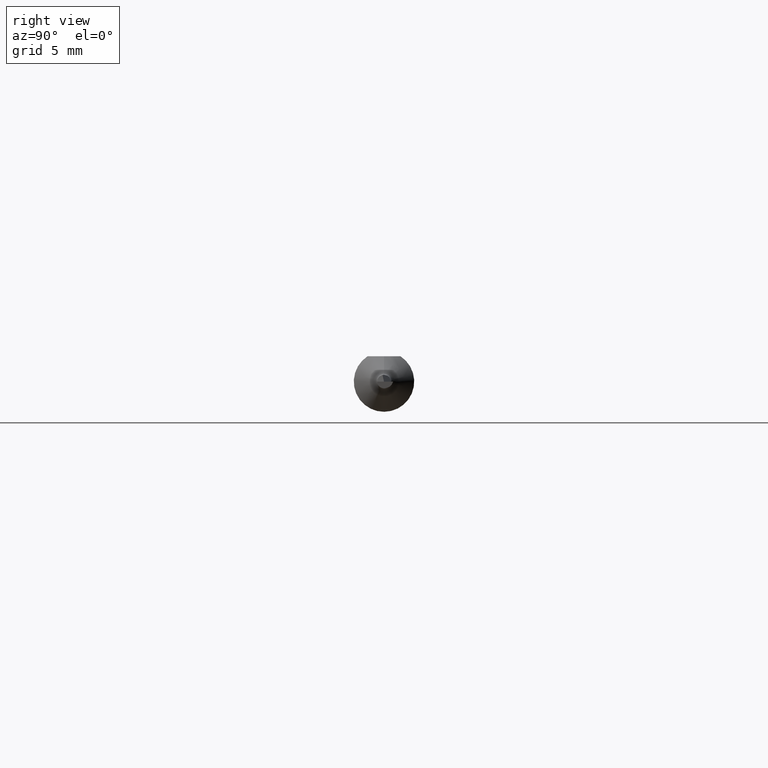
[diagram: clean part render]
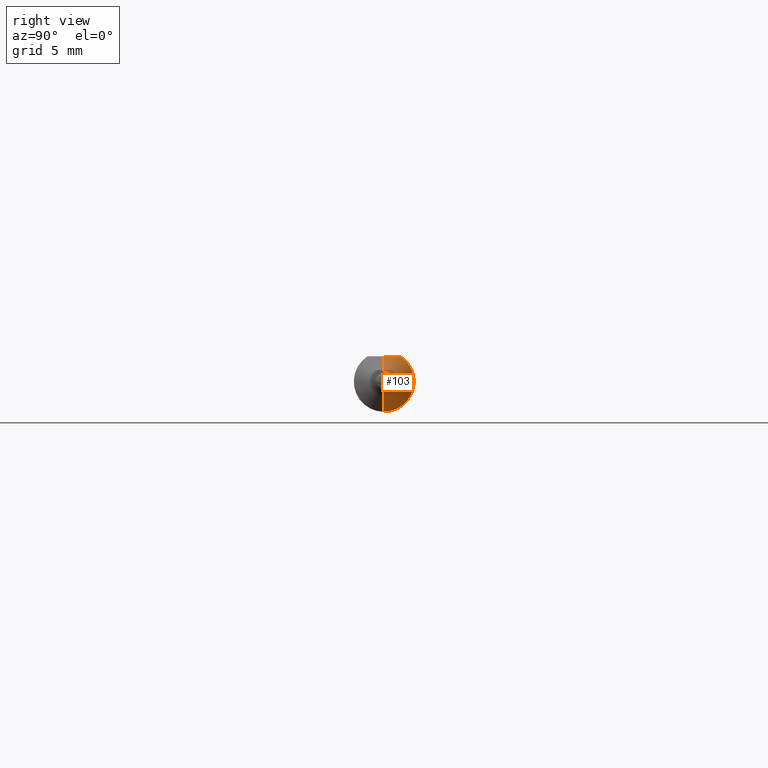
[diagram: same view with one face highlighted and labeled with its STEP entity id]
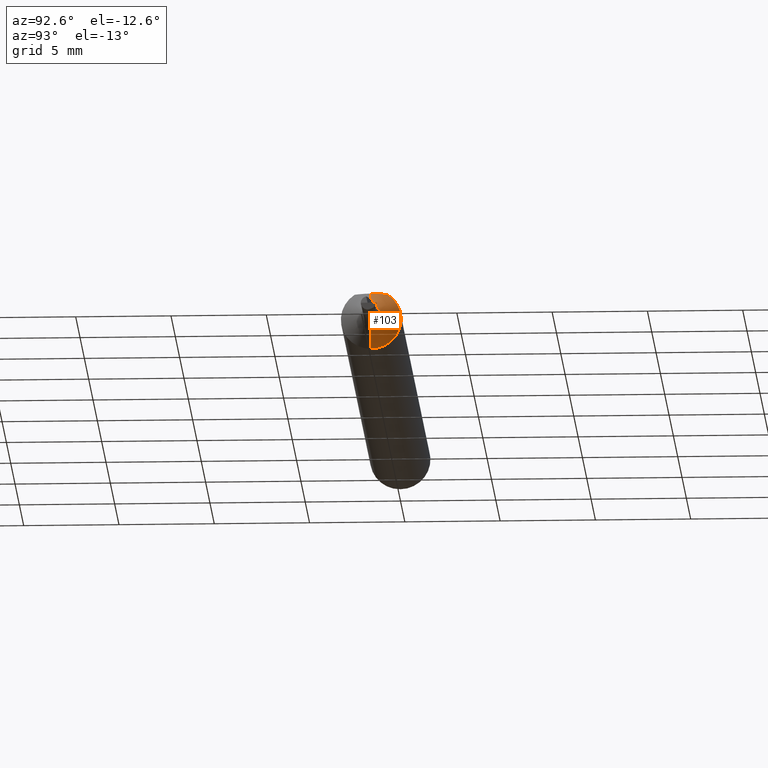
[diagram: same view with one face highlighted and labeled with its STEP entity id]
A machine part, right view. The second image highlights one B-rep face of the part: STEP entity #103.
A second angle (auxiliary view) of the same face is appended — the face is thin or edge-on in the first view.
In plain terms, the highlighted conical surface has half-angle 45 deg.
Its self-contained STEP definition (entity closure, byte-faithful):
#7 = EDGE_LOOP ( 'NONE', ( #477, #140, #108, #398, #572 ) ) ;
#12 = EDGE_CURVE ( 'NONE', #629, #254, #440, .T. ) ;
#30 = VERTEX_POINT ( 'NONE', #156 ) ;
#33 = CIRCLE ( 'NONE', #197, 0.02132233047033647161 ) ;
#47 = DIRECTION ( 'NONE',  ( -1.000000000000000000, -0.000000000000000000, -0.000000000000000000 ) ) ;
#52 = DIRECTION ( 'NONE',  ( 0.000000000000000000, 0.000000000000000000, 1.000000000000000000 ) ) ;
#53 = CARTESIAN_POINT ( 'NONE',  ( 1.380677669529663865, 2.611232376085963916E-18, -0.02132233047033647161 ) ) ;
#69 = CARTESIAN_POINT ( 'NONE',  ( 1.339650000000000007, 0.03386738844375220686, 0.05235000000000000070 ) ) ;
#88 = AXIS2_PLACEMENT_3D ( 'NONE', #596, #295, #252 ) ;
#100 = CARTESIAN_POINT ( 'NONE',  ( 1.349650000000000238, 0.005921060704595571683, 0.05235000000000002152 ) ) ;
#103 = ADVANCED_FACE ( 'NONE', ( #449 ), #495, .T. ) ;
#108 = ORIENTED_EDGE ( 'NONE', *, *, #12, .F. ) ;
#130 = VERTEX_POINT ( 'NONE', #364 ) ;
#140 = ORIENTED_EDGE ( 'NONE', *, *, #564, .T. ) ;
#149 = CARTESIAN_POINT ( 'NONE',  ( 1.344987470951200415, 0.02320690041070301232, 0.05235000000000002152 ) ) ;
#156 = CARTESIAN_POINT ( 'NONE',  ( 1.380677669529663865, 2.611232376085951590E-18, -0.02132233047033637099 ) ) ;
#184 = DIRECTION ( 'NONE',  ( 0.000000000000000000, 0.000000000000000000, 1.000000000000000000 ) ) ;
#187 = LINE ( 'NONE', #582, #282 ) ;
#197 = AXIS2_PLACEMENT_3D ( 'NONE', #625, #628, #184 ) ;
#205 = CARTESIAN_POINT ( 'NONE',  ( 1.349650000000000238, -3.532469938474420466E-21, 0.05235000000000001458 ) ) ;
#252 = DIRECTION ( 'NONE',  ( 0.000000000000000000, 0.000000000000000000, 1.000000000000000000 ) ) ;
#254 = VERTEX_POINT ( 'NONE', #460 ) ;
#280 = DIRECTION ( 'NONE',  ( -0.7071067811865507924, 0.000000000000000000, 0.7071067811865442421 ) ) ;
#282 = VECTOR ( 'NONE', #280, 39.37007874015748143 ) ;
#295 = DIRECTION ( 'NONE',  ( -1.000000000000000000, -0.000000000000000000, -0.000000000000000000 ) ) ;
#343 = CARTESIAN_POINT ( 'NONE',  ( 1.339650000000000007, 0.03386738844375220686, 0.05235000000000000070 ) ) ;
#364 = CARTESIAN_POINT ( 'NONE',  ( 1.349650000000000238, -3.532469938474420466E-21, 0.05235000000000001458 ) ) ;
#375 = EDGE_CURVE ( 'NONE', #469, #130, #187, .T. ) ;
#392 = CARTESIAN_POINT ( 'NONE',  ( 1.342494366674541473, 0.02863089781642876377, 0.05235000000000002152 ) ) ;
#397 = EDGE_CURVE ( 'NONE', #469, #30, #33, .T. ) ;
#398 = ORIENTED_EDGE ( 'NONE', *, *, #554, .T. ) ;
#439 = DIRECTION ( 'NONE',  ( -0.7071067811865507924, 8.659560562354893415E-17, -0.7071067811865442421 ) ) ;
#440 = CIRCLE ( 'NONE', #88, 0.06235000000000000264 ) ;
#449 = FACE_OUTER_BOUND ( 'NONE', #7, .T. ) ;
#460 = CARTESIAN_POINT ( 'NONE',  ( 1.339650000000000007, 7.635672792683746671E-18, -0.06235000000000000264 ) ) ;
#469 = VERTEX_POINT ( 'NONE', #494 ) ;
#477 = ORIENTED_EDGE ( 'NONE', *, *, #397, .T. ) ;
#489 = VECTOR ( 'NONE', #439, 39.37007874015748143 ) ;
#491 = LINE ( 'NONE', #53, #489 ) ;
#494 = CARTESIAN_POINT ( 'NONE',  ( 1.380677669529663865, 0.000000000000000000, 0.02132233047033637099 ) ) ;
#495 = CONICAL_SURFACE ( 'NONE', #581, 0.02132233047033647161, 0.7853981633974437271 ) ;
#517 = B_SPLINE_CURVE_WITH_KNOTS ( 'NONE', 3,
 ( #343, #392, #149, #545, #100, #205 ),
 .UNSPECIFIED., .F., .F.,
 ( 4, 2, 4 ),
 ( 0.002097671056027859606, 0.002546659511174765439, 0.002995647966321671272 ),
 .UNSPECIFIED. ) ;
#541 = CARTESIAN_POINT ( 'NONE',  ( 1.380677669529663865, 0.000000000000000000, 0.000000000000000000 ) ) ;
#545 = CARTESIAN_POINT ( 'NONE',  ( 1.348578772065486708, 0.01191466962039928676, 0.05235000000000001458 ) ) ;
#554 = EDGE_CURVE ( 'NONE', #629, #130, #517, .T. ) ;
#564 = EDGE_CURVE ( 'NONE', #30, #254, #491, .T. ) ;
#572 = ORIENTED_EDGE ( 'NONE', *, *, #375, .F. ) ;
#581 = AXIS2_PLACEMENT_3D ( 'NONE', #541, #47, #52 ) ;
#582 = CARTESIAN_POINT ( 'NONE',  ( 1.380677669529663865, 0.000000000000000000, 0.02132233047033647161 ) ) ;
#596 = CARTESIAN_POINT ( 'NONE',  ( 1.339650000000000007, 0.000000000000000000, 0.000000000000000000 ) ) ;
#625 = CARTESIAN_POINT ( 'NONE',  ( 1.380677669529663865, 0.000000000000000000, 0.000000000000000000 ) ) ;
#628 = DIRECTION ( 'NONE',  ( -1.000000000000000000, -0.000000000000000000, -0.000000000000000000 ) ) ;
#629 = VERTEX_POINT ( 'NONE', #69 ) ;